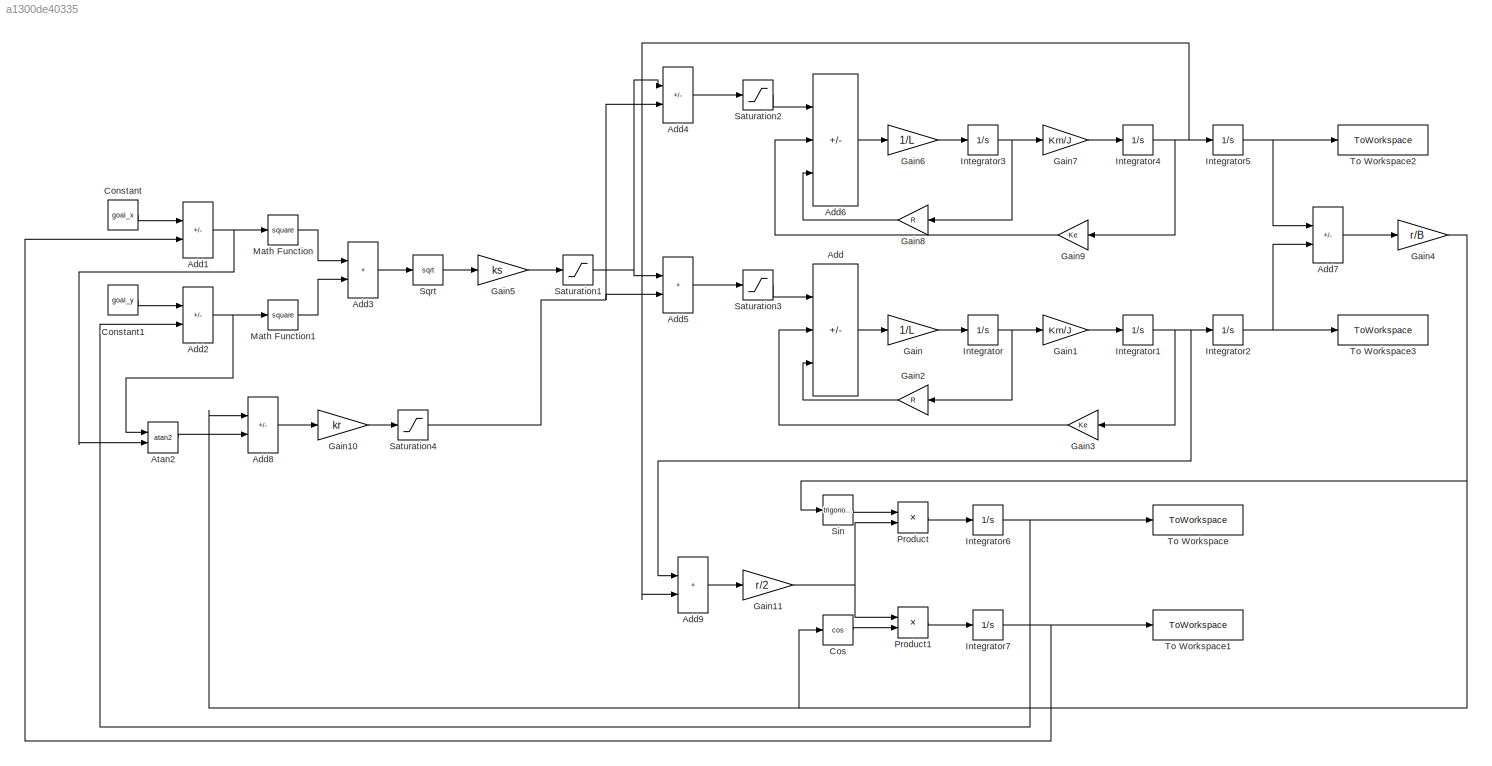
MODEL slx_a1300de40335
KIND model
CONFIG AbsTol = auto
CONFIG EnableMultiTasking = off
CONFIG FixedStep = auto
CONFIG MaxStep = auto
CONFIG MinStep = auto
CONFIG RelTol = 1e-3
CONFIG SampleTimeConstraint = Unconstrained
CONFIG SolverName = VariableStepAuto
CONFIG StartTime = 0.0
CONFIG StopTime = 50
WORKSPACE source: mxarray member
WORKSPACE MIN: Simulink.Parameter (value not decoded)
WORKSPACE U = 8.05
BLOCK [Sum] Add
  IconShape = rectangular
  Inputs = +--
  Ports = [3, 1]
BLOCK [Sum] Add1
  IconShape = rectangular
  Inputs = +-
  Ports = [2, 1]
BLOCK [Sum] Add2
  IconShape = rectangular
  Inputs = +-
  Ports = [2, 1]
BLOCK [Sum] Add3
  IconShape = rectangular
  Ports = [2, 1]
BLOCK [Sum] Add4
  IconShape = rectangular
  Inputs = +-
  Ports = [2, 1]
BLOCK [Sum] Add5
  IconShape = rectangular
  Ports = [2, 1]
BLOCK [Sum] Add6
  IconShape = rectangular
  Inputs = +--
  Ports = [3, 1]
BLOCK [Sum] Add7
  IconShape = rectangular
  Inputs = -+
  Ports = [2, 1]
BLOCK [Sum] Add8
  IconShape = rectangular
  Inputs = -+
  Ports = [2, 1]
BLOCK [Sum] Add9
  IconShape = rectangular
  Ports = [2, 1]
BLOCK [Trigonometry] Atan2
  Operator = atan2
  Ports = [2, 1]
BLOCK [Constant] Constant
  Value = goal_x
BLOCK [Constant] Constant1
  Value = goal_y
BLOCK [Trigonometry] Cos
  Operator = cos
  Ports = [1, 1]
BLOCK [Gain] Gain
  Gain = 1/L
BLOCK [Gain] Gain1
  Gain = Km/J
BLOCK [Gain] Gain10
  Gain = kr
BLOCK [Gain] Gain11
  Gain = r/2
BLOCK [Gain] Gain2
  Gain = R
BLOCK [Gain] Gain3
  Gain = Ke
BLOCK [Gain] Gain4
  Gain = r/B
BLOCK [Gain] Gain5
  Gain = ks
BLOCK [Gain] Gain6
  Gain = 1/L
BLOCK [Gain] Gain7
  Gain = Km/J
BLOCK [Gain] Gain8
  Gain = R
BLOCK [Gain] Gain9
  Gain = Ke
BLOCK [Integrator] Integrator
  Ports = [1, 1]
BLOCK [Integrator] Integrator1
  InitialCondition = 10
  Ports = [1, 1]
BLOCK [Integrator] Integrator2
  Ports = [1, 1]
BLOCK [Integrator] Integrator3
  Ports = [1, 1]
BLOCK [Integrator] Integrator4
  InitialCondition = 10
  Ports = [1, 1]
BLOCK [Integrator] Integrator5
  Ports = [1, 1]
BLOCK [Integrator] Integrator6
  Ports = [1, 1]
BLOCK [Integrator] Integrator7
  Ports = [1, 1]
BLOCK [Math] Math Function
  Operator = square
  Ports = [1, 1]
BLOCK [Math] Math Function1
  Operator = square
  Ports = [1, 1]
BLOCK [Product] Product
  Ports = [2, 1]
BLOCK [Product] Product1
  Ports = [2, 1]
BLOCK [Saturate] Saturation1
  LowerLimit = Umin*0.6
  UpperLimit = Umax*0.6
BLOCK [Saturate] Saturation2
  LowerLimit = Umin
  UpperLimit = Umax
BLOCK [Saturate] Saturation3
  LowerLimit = Umin
  UpperLimit = Umax
BLOCK [Saturate] Saturation4
  LowerLimit = Umin*0.4
  UpperLimit = Umax*0.4
BLOCK [Trigonometry] Sin
  Ports = [1, 1]
BLOCK [Sqrt] Sqrt
BLOCK [ToWorkspace] To Workspace
  FixptAsFi = on
  MaxDataPoints = inf
  Ports = [1]
  SampleTime = -1
  SaveFormat = Timeseries
  VariableName = Y
BLOCK [ToWorkspace] To Workspace1
  FixptAsFi = on
  MaxDataPoints = inf
  Ports = [1]
  SampleTime = -1
  SaveFormat = Timeseries
  VariableName = X
BLOCK [ToWorkspace] To Workspace2
  FixptAsFi = on
  MaxDataPoints = inf
  Ports = [1]
  SampleTime = -1
  SaveFormat = Timeseries
  VariableName = right
BLOCK [ToWorkspace] To Workspace3
  FixptAsFi = on
  MaxDataPoints = inf
  Ports = [1]
  SampleTime = -1
  SaveFormat = Timeseries
  VariableName = left
NET Add1:1 -> Atan2:2, Math Function:1
NET Add2:1 -> Atan2:1, Math Function1:1
LINE Add3:1 -> Sqrt:1
LINE Add4:1 -> Saturation2:1
LINE Add5:1 -> Saturation3:1
LINE Add6:1 -> Gain6:1
LINE Add7:1 -> Gain4:1
LINE Add8:1 -> Gain10:1
LINE Add9:1 -> Gain11:1
LINE Add:1 -> Gain:1
LINE Atan2:1 -> Add8:2
LINE Constant1:1 -> Add2:1
LINE Constant:1 -> Add1:1
LINE Cos:1 -> Product1:2
LINE Gain10:1 -> Saturation4:1
NET Gain11:1 -> Product1:1, Product:2
LINE Gain1:1 -> Integrator1:1
LINE Gain2:1 -> Add:3
LINE Gain3:1 -> Add:2
NET Gain4:1 -> Add8:1, Cos:1, Sin:1
LINE Gain5:1 -> Saturation1:1
LINE Gain6:1 -> Integrator3:1
LINE Gain7:1 -> Integrator4:1
LINE Gain8:1 -> Add6:3
LINE Gain9:1 -> Add6:2
LINE Gain:1 -> Integrator:1
NET Integrator1:1 -> Add9:1, Gain3:1, Integrator2:1
NET Integrator2:1 -> Add7:2, To Workspace3:1
NET Integrator3:1 -> Gain7:1, Gain8:1
NET Integrator4:1 -> Add9:2, Gain9:1, Integrator5:1
NET Integrator5:1 -> Add7:1, To Workspace2:1
NET Integrator6:1 -> Add2:2, To Workspace:1
NET Integrator7:1 -> Add1:2, To Workspace1:1
NET Integrator:1 -> Gain1:1, Gain2:1
LINE Math Function1:1 -> Add3:2
LINE Math Function:1 -> Add3:1
LINE Product1:1 -> Integrator7:1
LINE Product:1 -> Integrator6:1
NET Saturation1:1 -> Add4:1, Add5:1
LINE Saturation2:1 -> Add6:1
LINE Saturation3:1 -> Add:1
NET Saturation4:1 -> Add4:2, Add5:2
LINE Sin:1 -> Product:1
LINE Sqrt:1 -> Gain5:1
note: NET lines group one-source signal fan-out (src -> all destinations, sorted); 1:1 wires keep LINE
